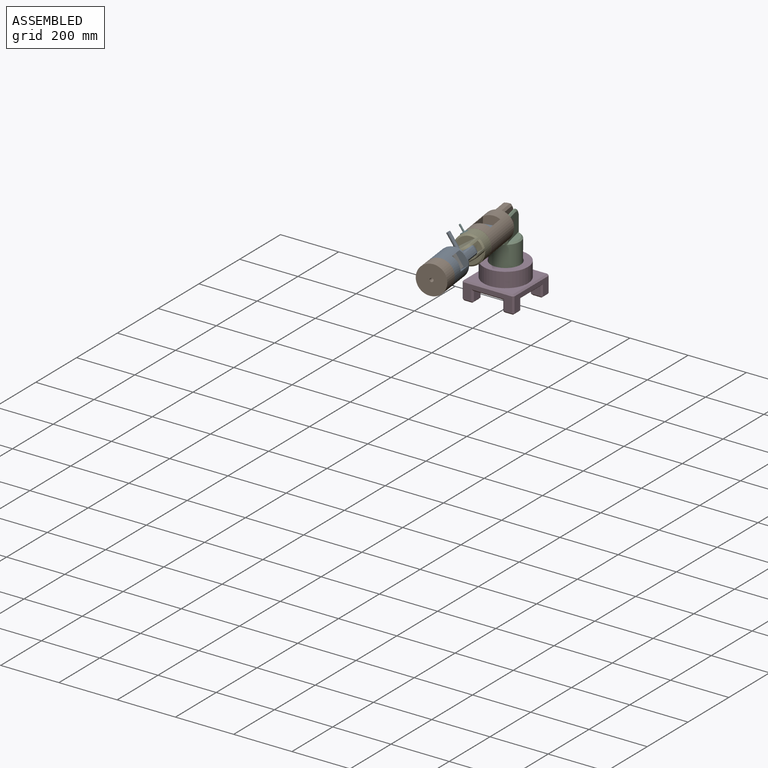
[diagram: assembled view]
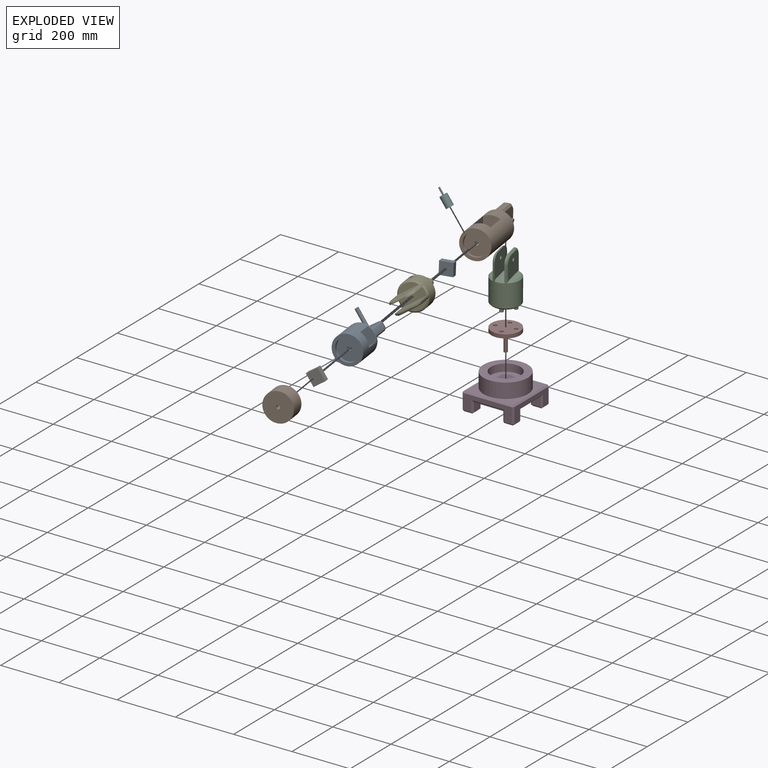
[diagram: exploded view]
GUIDED TOUR — MATED ASSEMBLY (Onshape document 129ffdcad40b1cba79273b75, AutoMate assembly 129ffdcad40b1cba79273b75_1272315f4acd24f75f276ad6_a967c928d47ce3181c894267_default)

This assembly has 10 components, labeled P0..P9 below (a component is one placed occurrence of a part; the same part can appear more than once), held together by 9 mates. A mate is a constraint between two components; its type names the relative motion it leaves free:
  FASTENED — locks the two components together rigidly (no relative motion),
  REVOLUTE — leaves rotation about the listed axis free (a hinge).
Axis/direction vectors are unit vectors and 'through' points are millimeter coordinates, both in the assembly's world frame.

MATES
  1. FASTENED "Fastened 1": P2 <-> P7, direction (0.000, 0.000, -1.000) through (2.02, -32.65, 1.83) mm
  2. FASTENED "Fastened 3": P0 <-> P1, direction (-0.222, 0.971, -0.087) through (20.39, -112.69, 164.19) mm
  3. FASTENED "Fastened 5": P5 <-> P4, direction (-0.555, -0.052, 0.830) through (23.26, -247.03, 216.88) mm
  4. REVOLUTE "Revolute 3": P4 <-> P1, axis (-0.222, 0.971, -0.087) through (43.55, -213.81, 173.27) mm
  5. REVOLUTE "Revolute 5": P9 <-> P8, axis (-0.179, 0.982, -0.057) through (93.97, -462.67, 191.23) mm
  6. REVOLUTE "Revolute 6": P7 <-> P3, axis (0.000, 0.000, -1.000) through (-5.07, -1.70, 1.83) mm
  7. REVOLUTE "Revolute 2": P1 <-> P2, axis (0.975, 0.223, 0.000) through (17.67, 3.50, 154.23) mm
  8. REVOLUTE "Revolute 4": P8 <-> P4, axis (0.555, 0.052, -0.830) through (81.48, -321.73, 163.70) mm
  9. FASTENED "Fastened 2": P6 <-> P8, direction (-0.179, 0.982, -0.057) through (83.87, -383.23, 189.51) mm

ASSEMBLY ORDER
  1. P1 — the base component [order heuristic]
  2. P2 — core [order heuristic]
  3. P0 [order verified]
  4. P5 — core [order heuristic]
  5. P7 — core [order heuristic]
  6. P4 — core [order heuristic]
  7. P3 — core [order heuristic]
  8. P8 — core [order heuristic]
  9. P6 — core [order heuristic]
  10. P9 — core [order heuristic]
Order-tag legend:
  [order verified] — this step's position reverses a verified removal order: the component was checked to insert without passing through the ones already placed.
  [order heuristic] — the first 9 components form the assembly's core: parts whose collision-free extraction could not be verified, listed in mate-graph order.

Of the 10 components, 7 carry the full construction recipe — the FeatureScript program that regenerates the part's solid from scratch; the rest are supplied as boundary geometry only.
Each toured component is shown spotlighted twice — in the assembled view, then in the exploded view, where a leader line traces a displaced component back to its assembled socket (saturated green if recipe-attached, orange if geometry-only; every other component desaturated gray) — followed by its recipe or geometry summary and the mates that hold it.
NOTE — document 2 of 2 of this assembly tour. The two overview renders and the header above are repeated from document 1; the component sections below continue where the previous document stopped.
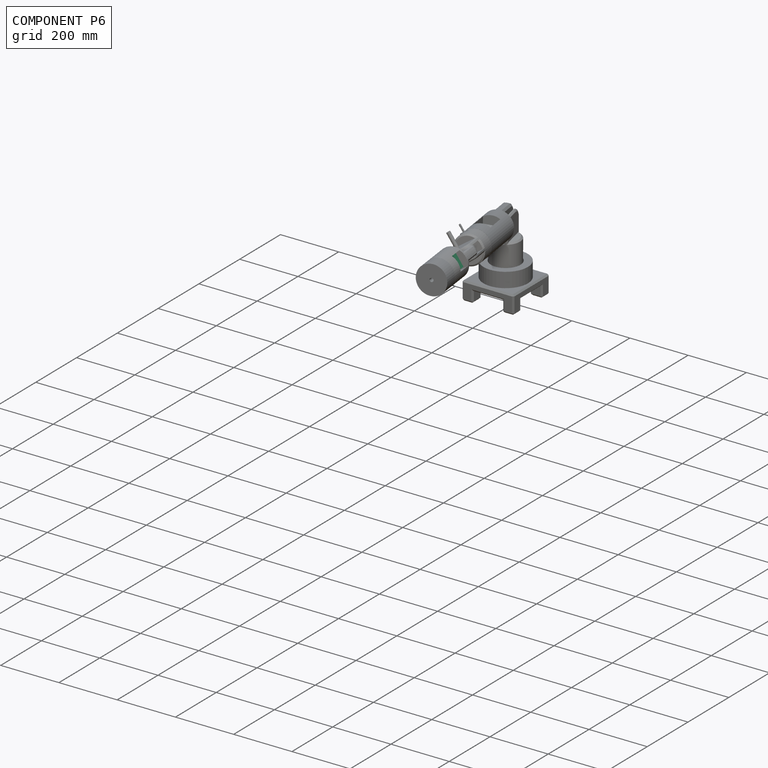
[diagram: component P6 — assembled]
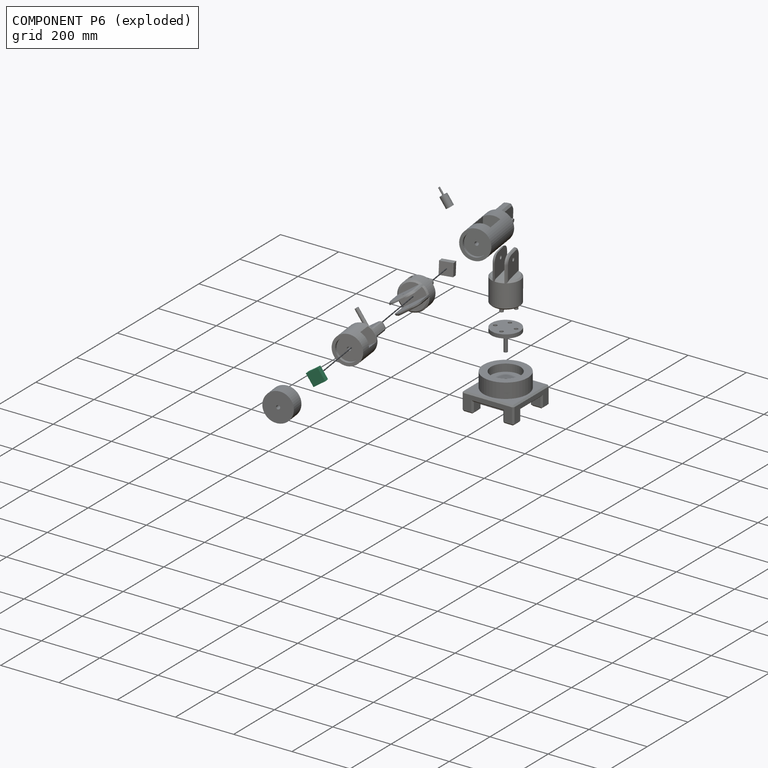
[diagram: component P6 — exploded]
COMPONENT P6 — same part as P0 (CADFS 00554226); its construction recipe is shown at P0.
Held by: FASTENED mate "Fastened 2" to P8.
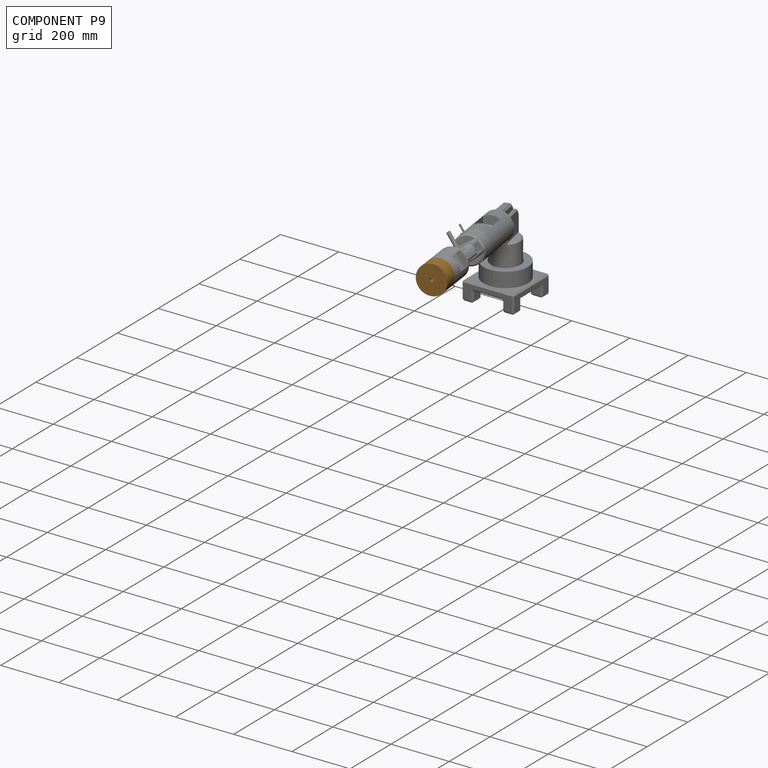
[diagram: component P9 — assembled]
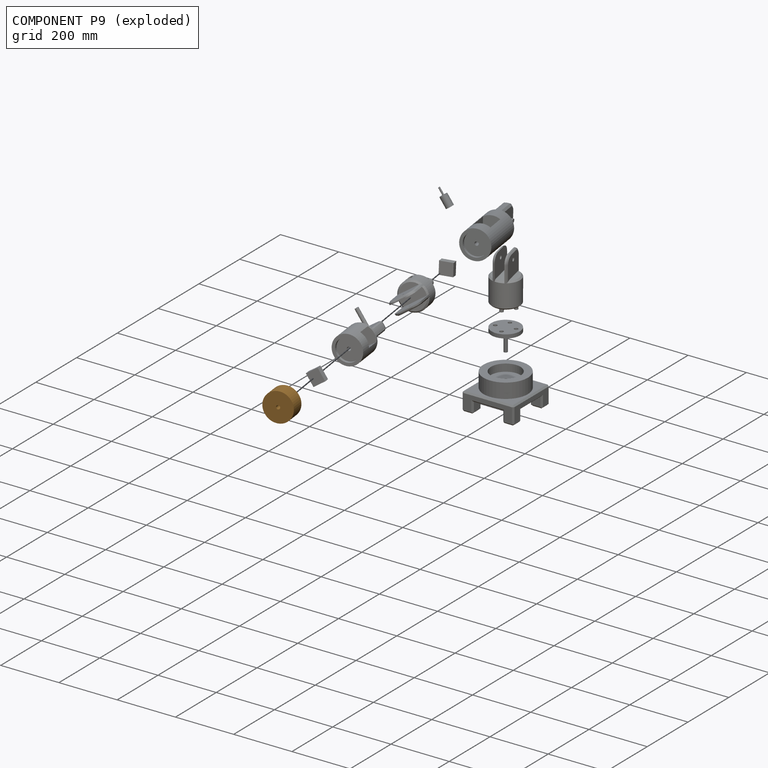
[diagram: component P9 — exploded]
COMPONENT P9 — geometry summary (no construction recipe available for this part):
  bounding box: 111.8 x 97.8 x 97.8 mm
  B-rep topology: 1 solid, 11 faces, 30 edges
  volume: 433104 mm^3 (41% of its bounding box)
  symmetry: revolution-symmetric about the z axis through its bounding-box center; mirror-symmetric across its x mid-plane, y mid-plane
Held by: REVOLUTE mate "Revolute 5" to P8.
PROVENANCE & LICENSES
Assembly (occurrences, transforms, mates, per-part STEP geometry): AutoMate dataset, Zenodo record 7776208, CC0.
Construction recipes: CADFS (HuggingFace VladPyatov/CADFS, CC-BY-4.0, layered over the ABC dataset), FeatureScript reconstruction programs keyed by ABC model id.
Join: ABC meta listings map ABC model id -> Onshape documentId; within a shared document, parts are matched by geometric signature (bounding-box dims + volume at 0.1% relative tolerance, exact B-rep face/solid counts).
Verification: 7 of this assembly's 10 components carry a recipe attachment, and every attachment is mesh-verified: the CADFS STEP and the AutoMate member STEP were compared as meshes in their shared local frame (symmetric sampled-point-to-mesh distance); worst across the 7 attachments: below the mesh-comparison resolution (tessellation chordal tolerance ~0.414 mm) on a 276 mm part.
Renders: orthographic iso camera (az 35 / el 25); the floor grid conveys scale (grid pitch printed in each image; no ruler). In the exploded view each component is displaced by its stored offset vector: the offsets alone carry the explosion direction (mate normal/axis signs are not orientation cues and do not encode it), and separation distances are assigned per mate-chain, not proportionally to assembly-order depth.
